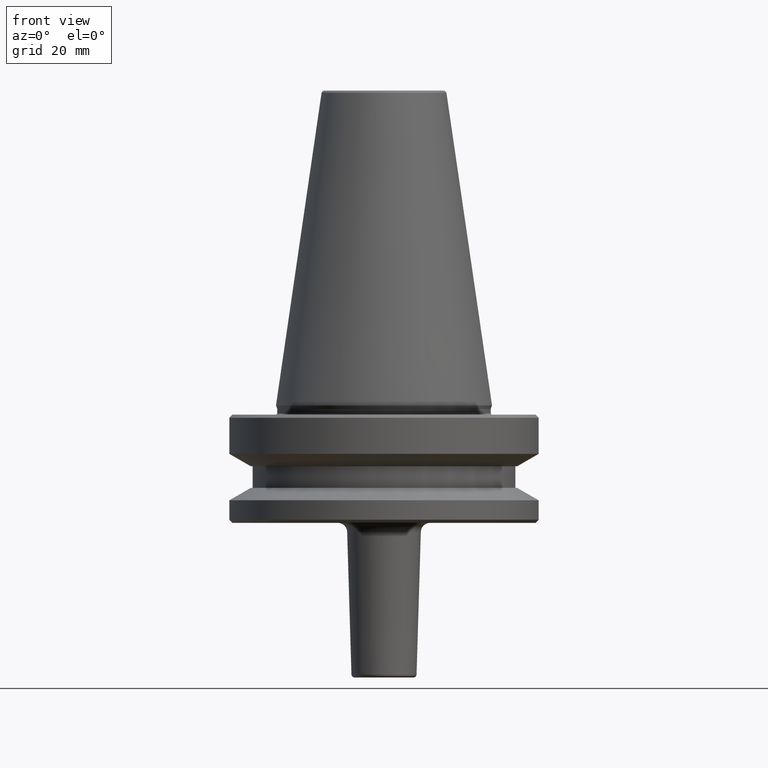
[diagram: clean part render]
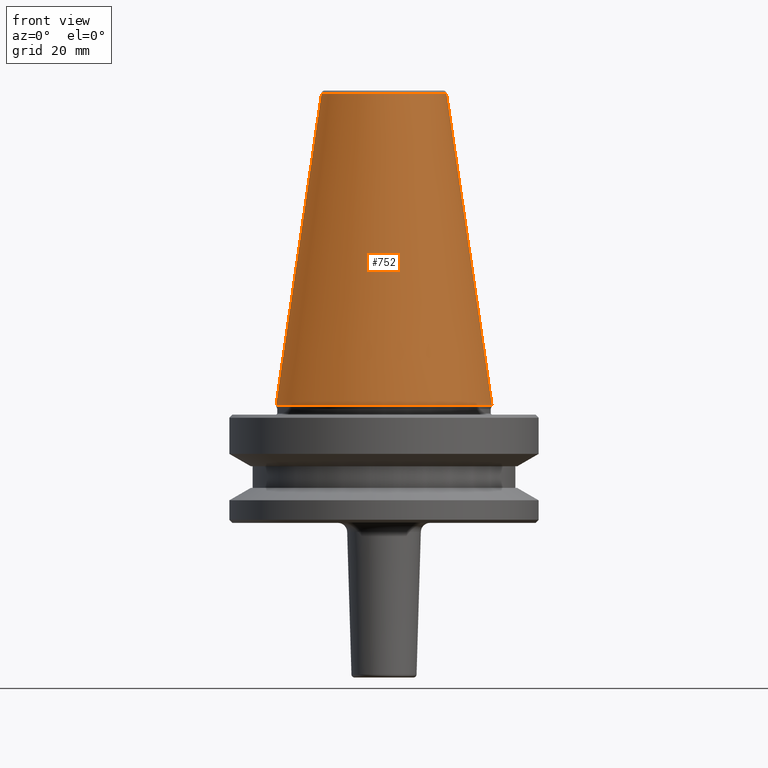
[diagram: same view with one face highlighted and labeled with its STEP entity id]
A machine part, front view. The second image highlights one B-rep face of the part: STEP entity #752.
In plain terms, the highlighted conical surface has half-angle 8.297 deg.
Its self-contained STEP definition (entity closure, byte-faithful):
#9 = CONICAL_SURFACE ( 'NONE', #165, 34.92499999999999700, 0.1448138465474120600 ) ;
#19 = VECTOR ( 'NONE', #320, 1000.000000000000000 ) ;
#34 = DIRECTION ( 'NONE',  ( 1.000000000000000000, 0.0000000000000000000, 0.0000000000000000000 ) ) ;
#93 = ORIENTED_EDGE ( 'NONE', *, *, #239, .F. ) ;
#107 = CARTESIAN_POINT ( 'NONE',  ( -34.92499999999999700, 0.0000000000000000000, 0.0000000000000000000 ) ) ;
#108 = EDGE_LOOP ( 'NONE', ( #93, #641, #198, #809 ) ) ;
#133 = EDGE_CURVE ( 'NONE', #871, #750, #746, .T. ) ;
#143 = VERTEX_POINT ( 'NONE', #421 ) ;
#165 = AXIS2_PLACEMENT_3D ( 'NONE', #372, #842, #373 ) ;
#198 = ORIENTED_EDGE ( 'NONE', *, *, #574, .T. ) ;
#239 = EDGE_CURVE ( 'NONE', #750, #364, #733, .T. ) ;
#320 = DIRECTION ( 'NONE',  ( 0.1443082272673000800, 1.767266086135278300E-017, -0.9895327864921754600 ) ) ;
#346 = LINE ( 'NONE', #107, #359 ) ;
#359 = VECTOR ( 'NONE', #591, 1000.000000000000000 ) ;
#364 = VERTEX_POINT ( 'NONE', #943 ) ;
#365 = DIRECTION ( 'NONE',  ( -0.0000000000000000000, -0.0000000000000000000, 1.000000000000000000 ) ) ;
#372 = CARTESIAN_POINT ( 'NONE',  ( 0.0000000000000000000, 0.0000000000000000000, 0.0000000000000000000 ) ) ;
#373 = DIRECTION ( 'NONE',  ( -1.000000000000000000, 0.0000000000000000000, 0.0000000000000000000 ) ) ;
#421 = CARTESIAN_POINT ( 'NONE',  ( -34.92499999999999700, 4.277078946022131700E-015, 0.0000000000000000000 ) ) ;
#426 = AXIS2_PLACEMENT_3D ( 'NONE', #969, #517, #34 ) ;
#517 = DIRECTION ( 'NONE',  ( -0.0000000000000000000, -0.0000000000000000000, 1.000000000000000000 ) ) ;
#534 = CARTESIAN_POINT ( 'NONE',  ( 20.20381605152244500, 3.375666405914009100E-015, 100.9443082272672900 ) ) ;
#563 = CIRCLE ( 'NONE', #426, 34.92499999999999700 ) ;
#565 = CARTESIAN_POINT ( 'NONE',  ( 34.92499999999999700, 4.277078946022130900E-015, 0.0000000000000000000 ) ) ;
#574 = EDGE_CURVE ( 'NONE', #871, #143, #346, .T. ) ;
#576 = EDGE_CURVE ( 'NONE', #143, #364, #563, .T. ) ;
#591 = DIRECTION ( 'NONE',  ( -0.1443082272673000800, 0.0000000000000000000, -0.9895327864921754600 ) ) ;
#641 = ORIENTED_EDGE ( 'NONE', *, *, #133, .F. ) ;
#731 = DIRECTION ( 'NONE',  ( 1.000000000000000000, 0.0000000000000000000, 0.0000000000000000000 ) ) ;
#733 = LINE ( 'NONE', #565, #19 ) ;
#746 = CIRCLE ( 'NONE', #754, 20.20381605152244500 ) ;
#750 = VERTEX_POINT ( 'NONE', #534 ) ;
#752 = ADVANCED_FACE ( 'NONE', ( #845 ), #9, .T. ) ;
#754 = AXIS2_PLACEMENT_3D ( 'NONE', #755, #365, #731 ) ;
#755 = CARTESIAN_POINT ( 'NONE',  ( 0.0000000000000000000, 0.0000000000000000000, 100.9443082272672900 ) ) ;
#809 = ORIENTED_EDGE ( 'NONE', *, *, #576, .T. ) ;
#842 = DIRECTION ( 'NONE',  ( 0.0000000000000000000, 0.0000000000000000000, -1.000000000000000000 ) ) ;
#845 = FACE_OUTER_BOUND ( 'NONE', #108, .T. ) ;
#871 = VERTEX_POINT ( 'NONE', #918 ) ;
#918 = CARTESIAN_POINT ( 'NONE',  ( -20.20381605152244500, 0.0000000000000000000, 100.9443082272672900 ) ) ;
#943 = CARTESIAN_POINT ( 'NONE',  ( 34.92499999999999700, 0.0000000000000000000, 0.0000000000000000000 ) ) ;
#969 = CARTESIAN_POINT ( 'NONE',  ( 0.0000000000000000000, 0.0000000000000000000, 0.0000000000000000000 ) ) ;